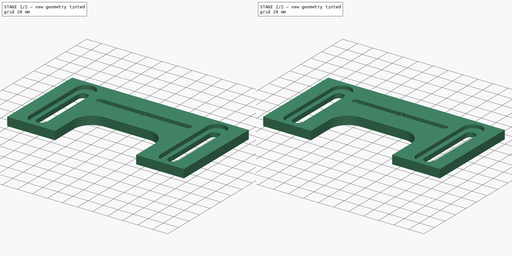
[diagram: build sequence overview — one tinted view per stage of 2, left to right]
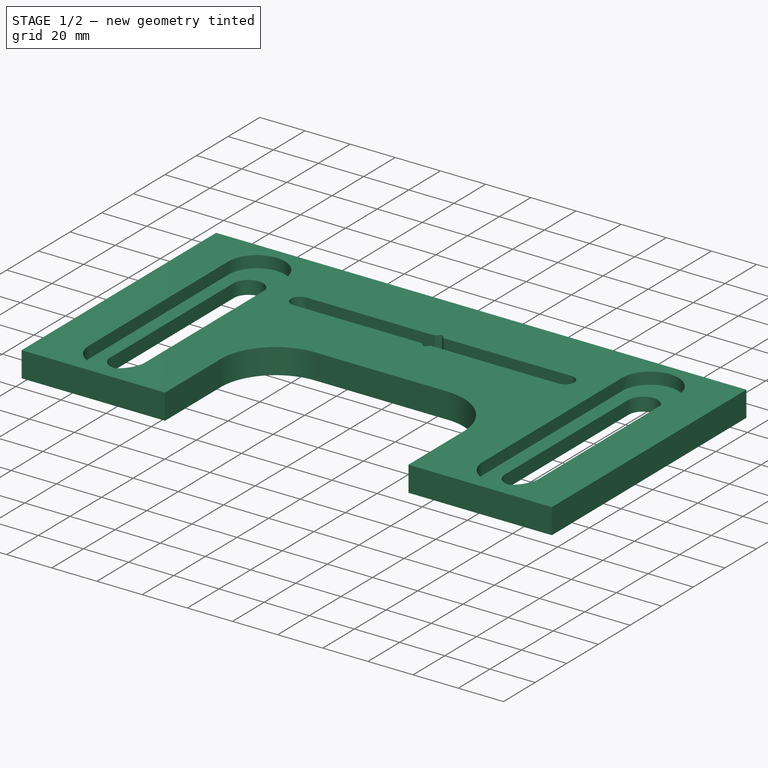
[diagram: stage 1 of 2 — iso view after this stage's code; geometry added in this stage tinted green]
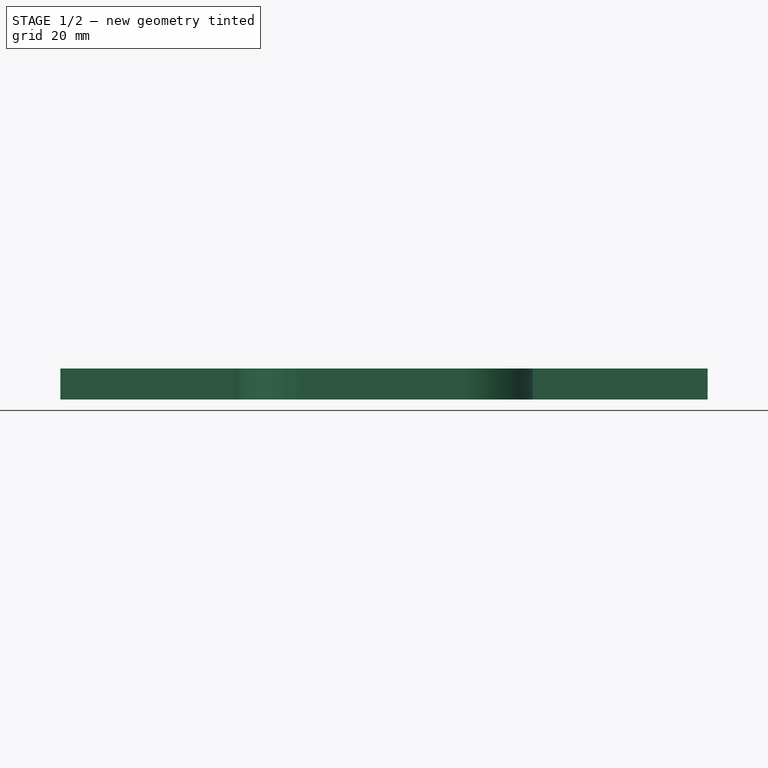
[diagram: stage 1 of 2 — front view after this stage's code; geometry added in this stage tinted green]
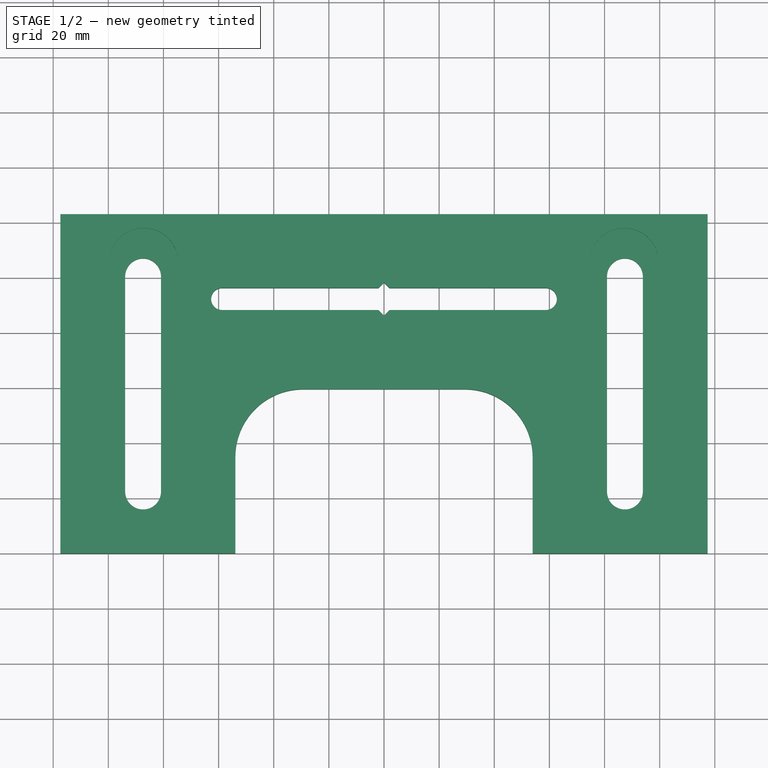
[diagram: stage 1 of 2 — top view after this stage's code; geometry added in this stage tinted green]
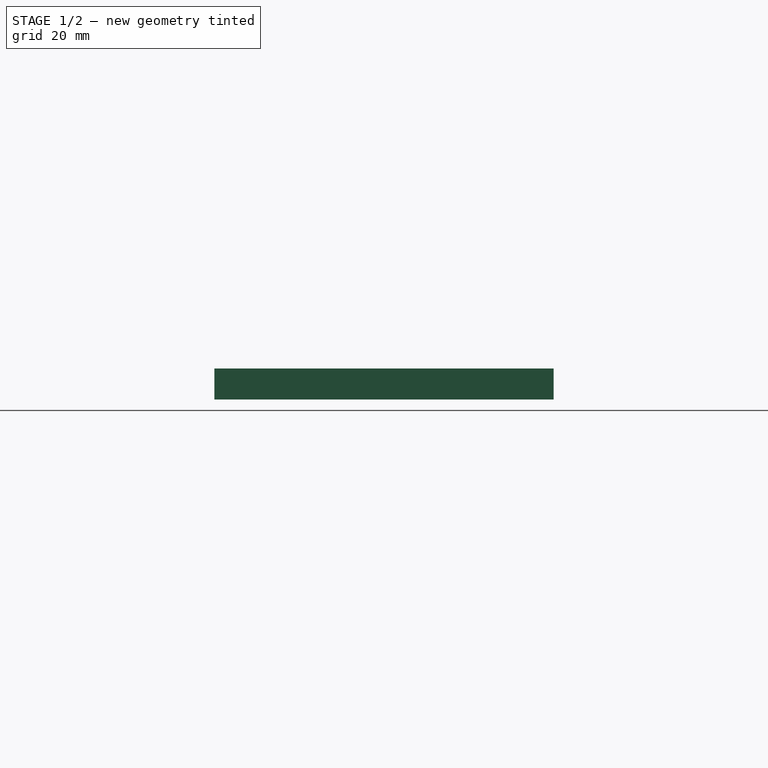
[diagram: stage 1 of 2 — right view after this stage's code; geometry added in this stage tinted green]
FCSTD DOCUMENT  (FreeCAD 2023.131R26244 +5365 (Git))
Label: Door Hinge Template
License: All rights reserved
LicenseURL: http://en.wikipedia.org/wiki/All_rights_reserved
objects: Sketcher::SketchObject×2, Spreadsheet::Sheet×1, PartDesign::Pad×1, PartDesign::Pocket×1, PartDesign::Fillet×1, PartDesign::Body×1
note: 14 computed .brp shape members not serialized (recipe doc carries the construction recipe); baked Part::Feature solids carry a one-line shape summary decoded from their .brp

FEATURE [Spreadsheet::Sheet] Spreadsheet  label="Parameters"
  PythonMode = false
  ShowCells = 0
  TreeRank = 1
  cells = A1=Hinge Width; B1(Hinge_Width)=88.75; A2=Hinge Depth; B2(Hinge_Depth)=50; A3=Hinge Corner Diameter; B3(Hinge_Corner_Diameter)=15; A5=Bushing Diameter; B5(Bushing_Diameter)=25.4; C5=3/8 inches; A6=Bushing Height; B6(Bushing_Height)=6; A7=Router Bit Diameter; B7(Router_Bit_Diameter)=6.35; C7=1/4 inches; A8=Router Bit Offset; B8(Delta)==(Bushing_Diameter - Router_Bit_Diameter) / 2; A10=Cutout Width; B10(Cutout_Width)==Hinge_Width + 2 * Delta; A11=Cutout Depth; B11(Cutout_Depth)==Hinge_Depth + Delta; A12=Cutout Corner Diameter; B12(Cutout_Corner_Diameter)==Hinge_Corner_Diameter + Delta; A14=Router Base Diameter; B14(Router_Base_Diameter)=127; A15=Door Thickness; B15(Door_Thickness)=35; A16=Screw Head + Washer Height; B16(Washer_Height)=5.25; A17=Washer Diameter; B17(Washer_Diameter)=12.5; A19=Plastic Thickness; B19(Thickness)=4; A20=Platform Width; B20(Width)==Cutout_Width + Router_Base_Diameter; A21=Platform Depth; B21(Depth)==Cutout_Depth + Router_Base_Diameter / 2; A23=Slot Width; B23(Slot_Width)=6.5; A24=Slot Length; B24(Slot_Length)==Depth - 8 * Thickness - 2 * Slot_Width; A25=Slot X Offset; B25(Slot_X_Offset)==Hinge_Width / 2 + (Width - Hinge_Width) / 4
FEATURE [Sketcher::SketchObject] Sketch
  ArcFitTolerance = 1e-06
  AttachmentSupport = -> [XY_Plane]
  ExternalBSplineMaxDegree = 5
  ExternalBSplineTolerance = 0.0001
  FullyConstrained = false
  InternalTolerance = 1e-06
  InvalidShape = false
  MakeInternals = false
  MapMode = 5
  Support = -> [XY_Plane]
  TreeRank = 12
  ValidateShape = true
  expr: Constraints[10] = <<Parameters>>.Width
  expr: Constraints[18] = <<Parameters>>.Cutout_Corner_Diameter
  expr: Constraints[20] = <<Parameters>>.Cutout_Depth
  expr: Constraints[21] = <<Parameters>>.Cutout_Width
  expr: Constraints[32] = <<Parameters>>.Slot_Width
  expr: Constraints[33] = <<Parameters>>.Slot_Length
  expr: Constraints[34] = <<Parameters>>.Slot_X_Offset
  expr: Constraints[43] = <<Parameters>>.Slot_X_Offset
  expr: Constraints[51] = <<Parameters>>.Depth / 2
  expr: Constraints[63] = <<Parameters>>.Depth / 4 * 3
  expr: Constraints[64] = <<Parameters>>.Width / 2
  expr: Constraints[69] = <<Parameters>>.Thickness
  expr: Constraints[9] = <<Parameters>>.Depth
  sketch-geometry (33):
    g0: LineSegment StartX=117.4 StartY=123.025 StartZ=0 EndX=117.4 EndY=0 EndZ=0
    g1: LineSegment StartX=117.4 StartY=0 StartZ=0 EndX=53.9 EndY=0 EndZ=0
    g2: LineSegment StartX=-117.4 StartY=0 StartZ=0 EndX=-117.4 EndY=123.025 EndZ=0
    g3: LineSegment StartX=-117.4 StartY=123.025 StartZ=0 EndX=117.4 EndY=123.025 EndZ=0
    g4: LineSegment StartX=53.9 StartY=0 StartZ=0 EndX=53.9 EndY=35 EndZ=0
    g5: LineSegment StartX=29.375 StartY=59.525 StartZ=0 EndX=-29.375 EndY=59.525 EndZ=0
    g6: LineSegment StartX=-53.9 StartY=35 StartZ=0 EndX=-53.9 EndY=0 EndZ=0
    g7: ArcOfCircle CenterX=-29.375 CenterY=35 CenterZ=0 NormalX=0 NormalY=0 NormalZ=1 AngleXU=0 Radius=24.525 StartAngle=1.5708 EndAngle=3.14159
    g8: ArcOfCircle CenterX=29.375 CenterY=35 CenterZ=0 NormalX=0 NormalY=0 NormalZ=1 AngleXU=0 Radius=24.525 StartAngle=0 EndAngle=1.5708
    g9: LineSegment StartX=-53.9 StartY=0 StartZ=0 EndX=-117.4 EndY=0 EndZ=0
    g10: ArcOfCircle CenterX=-87.3875 CenterY=100.525 CenterZ=0 NormalX=0 NormalY=0 NormalZ=1 AngleXU=0 Radius=6.5 StartAngle=2e-16 EndAngle=3.14159
    g11: ArcOfCircle CenterX=-87.3875 CenterY=22.5 CenterZ=0 NormalX=0 NormalY=0 NormalZ=1 AngleXU=0 Radius=6.5 StartAngle=3.14159 EndAngle=6.28319
    g12: LineSegment StartX=-93.8875 StartY=100.525 StartZ=0 EndX=-93.8875 EndY=22.5 EndZ=0
    g13: LineSegment StartX=-80.8875 StartY=22.5 StartZ=0 EndX=-80.8875 EndY=100.525 EndZ=0
    g14: ArcOfCircle CenterX=87.3875 CenterY=100.525 CenterZ=0 NormalX=0 NormalY=0 NormalZ=1 AngleXU=0 Radius=6.5 StartAngle=8e-16 EndAngle=3.14159
    g15: ArcOfCircle CenterX=87.3875 CenterY=22.5 CenterZ=0 NormalX=0 NormalY=0 NormalZ=1 AngleXU=0 Radius=6.5 StartAngle=3.14159 EndAngle=6.28319
    g16: LineSegment StartX=80.8875 StartY=100.525 StartZ=0 EndX=80.8875 EndY=22.5 EndZ=0
    g17: LineSegment StartX=93.8875 StartY=22.5 StartZ=0 EndX=93.8875 EndY=100.525 EndZ=0
    g18: LineSegment [constr] StartX=-87.3875 StartY=100.525 StartZ=0 EndX=87.3875 EndY=22.5 EndZ=0
    g19: LineSegment [constr] StartX=87.3875 StartY=100.525 StartZ=0 EndX=-87.3875 EndY=22.5 EndZ=0
    g20: GeomPoint [constr] X=-7.5e-15 Y=61.5125 Z=0
    g21: ArcOfCircle CenterX=-58.7 CenterY=92.2688 CenterZ=0 NormalX=0 NormalY=0 NormalZ=1 AngleXU=0 Radius=4 StartAngle=1.5708 EndAngle=4.71239
    g22: ArcOfCircle CenterX=58.7 CenterY=92.2688 CenterZ=0 NormalX=0 NormalY=0 NormalZ=1 AngleXU=0 Radius=4 StartAngle=4.71239 EndAngle=7.85398
    g23: LineSegment StartX=-58.7 StartY=88.2688 StartZ=0 EndX=-2 EndY=88.2688 EndZ=0
    g24: LineSegment StartX=58.7 StartY=96.2688 StartZ=0 EndX=2 EndY=96.2688 EndZ=0
    g25: LineSegment [constr] StartX=-58.7 StartY=92.2688 StartZ=0 EndX=58.7 EndY=92.2688 EndZ=0
    g26: GeomPoint [constr] X=0 Y=92.2688 Z=0
    g27: LineSegment StartX=-2 StartY=88.2688 StartZ=0 EndX=0 EndY=86.2688 EndZ=0
    g28: LineSegment StartX=0 StartY=86.2688 StartZ=0 EndX=2 EndY=88.2688 EndZ=0
    g29: LineSegment StartX=-2 StartY=96.2688 StartZ=0 EndX=-4e-16 EndY=98.2688 EndZ=0
    g30: LineSegment StartX=-4e-16 StartY=98.2688 StartZ=0 EndX=2 EndY=96.2688 EndZ=0
    g31: LineSegment StartX=-2 StartY=96.2688 StartZ=0 EndX=-58.7 EndY=96.2688 EndZ=0
    g32: LineSegment StartX=2 StartY=88.2688 StartZ=0 EndX=58.7 EndY=88.2688 EndZ=0
  constraints (83):
    c: Coincident(g0,g1)
    c: Coincident(g9,g2)
    c: Coincident(g2,g3)
    c: Coincident(g3,g0)
    c: Horizontal(g1)
    c: Horizontal(g3)
    c: Vertical(g0)
    c: Vertical(g2)
    c: PointOnObject(g9,g-1)
    c: DistanceY(g0,g0) = 123.025
    c: DistanceX(g3,g3) = 234.8
    c: Horizontal(g5)
    c: Vertical(g4)
    c: Vertical(g6)
    c: Tangent(g5,g7) = -1.5708
    c: Tangent(g6,g7) = -1.5708
    c: Tangent(g4,g8) = -1.5708
    c: Tangent(g5,g8) = -1.5708
    c: Radius(g7) = 24.525
    c: Symmetric(g6,g4,g-2)
    c: DistanceY(g-1,g5) = 59.525
    c: DistanceX(g6,g4) = 107.8
    c: Coincident(g9,g6)
    c: PointOnObject(g6,g-1)
    c: Coincident(g1,g4)
    c: Symmetric(g2,g0,g-2)
    c: Tangent(g10,g12) = -1.5708
    c: Tangent(g12,g11) = -1.5708
    c: Tangent(g11,g13) = -1.5708
    c: Tangent(g13,g10) = -1.5708
    c: Equal(g10,g11)
    c: Vertical(g13)
    c: Radius(g10) = 6.5
    c: DistanceY(g11,g10) = 78.025
    c: DistanceX(g11,g-1) = 80.8875
    c: Tangent(g14,g16) = -1.5708
    c: Tangent(g16,g15) = -1.5708
    c: Tangent(g15,g17) = -1.5708
    c: Tangent(g17,g14) = -1.5708
    c: Equal(g14,g15)
    c: Vertical(g16)
    c: Equal(g10,g14)
    c: Equal(g12,g17)
    c: DistanceX(g-1,g15) = 80.8875
    c: DistanceY(g10,g14) = 0
    c: Coincident(g18,g10)
    c: Coincident(g18,g15)
    c: Coincident(g19,g14)
    c: Coincident(g19,g11)
    c: PointOnObject(g20,g18)
    c: PointOnObject(g20,g19)
    c: DistanceY(g-1,g20) = 61.5125
    c: Tangent(g21,g23) = -1.5708
    c: Coincident(g32,g22) = -1.5708
    c: Tangent(g22,g24) = -1.5708
    c: Coincident(g31,g21) = -1.5708
    c: Equal(g21,g22)
    c: Radius(g22) = 4
    c: Symmetric(g21,g22,g-2)
    c: Coincident(g25,g21)
    c: Coincident(g25,g22)
    c: PointOnObject(g26,g25)
    c: PointOnObject(g26,g-2)
    c: DistanceY(g-1,g26) = 92.2688
    c: DistanceX(g21,g22) = 117.4
    c: PointOnObject(g27,g-2)
    c: Coincident(g28,g27)
    c: Angle(g23,g28) = 0.785398
    c: Angle(g27,g23) = 0.785398
    c: DistanceX(g27,g28) = 4
    c: PointOnObject(g29,g-2)
    c: Coincident(g30,g29)
    c: Equal(g27,g29)
    c: Equal(g29,g30)
    c: Angle(g30,g24) = 0.785398
    c: Coincident(g24,g30)
    c: Coincident(g31,g29)
    c: Coincident(g23,g27)
    c: Coincident(g32,g28)
    c: Horizontal(g31)
    c: Horizontal(g23)
    c: Horizontal(g32)
    c: Horizontal(g24)
FEATURE [PartDesign::Pad] Pad
  AddSubType = 0
  AlongSketchNormal = false
  AutoTaperInnerAngle = true
  CheckUpToFaceLimits = true
  ClaimChildren = false
  Direction = (0,0,1)
  Fit = 0
  FitJoin = 0
  InnerFit = 0
  InnerFitJoin = 0
  InvalidShape = false
  Length = 11.25
  Length2 = 100
  Linearize = true
  NewSolid = false
  Profile = -> Sketch
  Suppress = false
  TaperInnerAngle = 0
  TaperInnerAngleRev = 0
  TreeRank = 13
  Type = 0
  ValidateShape = true
  _ProfileBasedVersion = 1
  expr: Length = <<Parameters>>.Bushing_Height + <<Parameters>>.Washer_Height
FEATURE [Sketcher::SketchObject] Sketch001
  ArcFitTolerance = 1e-06
  AttachmentSupport = -> [Pad]
  ExternalBSplineMaxDegree = 5
  ExternalBSplineTolerance = 0.0001
  FullyConstrained = true
  InternalTolerance = 1e-06
  InvalidShape = false
  MakeInternals = false
  MapMode = 5
  Placement = pos=(0,0,11.25) rot=(0,0,1;0rad)
  Support = -> [Pad]
  TreeRank = 14
  ValidateShape = true
  expr: Constraints[14] = <<Parameters>>.Washer_Diameter
  expr: Constraints[16] = <<Parameters>>.Slot_X_Offset - <<Parameters>>.Washer_Diameter / 2
  expr: Constraints[17] = <<Parameters>>.Slot_X_Offset - <<Parameters>>.Washer_Diameter / 2
  expr: Constraints[18] = <<Parameters>>.Slot_Length + <<Parameters>>.Washer_Diameter * 0.8
  expr: Constraints[25] = <<Parameters>>.Depth / 2
  sketch-geometry (11):
    g0: ArcOfCircle CenterX=-87.1375 CenterY=105.525 CenterZ=0 NormalX=0 NormalY=0 NormalZ=1 AngleXU=0 Radius=12.5 StartAngle=-9.7709e-12 EndAngle=3.14159
    g1: ArcOfCircle CenterX=-87.1375 CenterY=17.5 CenterZ=0 NormalX=0 NormalY=0 NormalZ=1 AngleXU=0 Radius=12.5 StartAngle=3.14159 EndAngle=6.28319
    g2: LineSegment StartX=-99.6375 StartY=105.525 StartZ=0 EndX=-99.6375 EndY=17.5 EndZ=0
    g3: LineSegment StartX=-74.6375 StartY=17.5 StartZ=0 EndX=-74.6375 EndY=105.525 EndZ=0
    g4: ArcOfCircle CenterX=87.1375 CenterY=105.525 CenterZ=0 NormalX=0 NormalY=0 NormalZ=1 AngleXU=0 Radius=12.5 StartAngle=0 EndAngle=3.14159
    g5: ArcOfCircle CenterX=87.1375 CenterY=17.5 CenterZ=0 NormalX=0 NormalY=0 NormalZ=1 AngleXU=0 Radius=12.5 StartAngle=3.14159 EndAngle=6.28319
    g6: LineSegment StartX=74.6375 StartY=105.525 StartZ=0 EndX=74.6375 EndY=17.5 EndZ=0
    g7: LineSegment StartX=99.6375 StartY=17.5 StartZ=0 EndX=99.6375 EndY=105.525 EndZ=0
    g8: LineSegment [constr] StartX=-87.1375 StartY=105.525 StartZ=0 EndX=87.1375 EndY=17.5 EndZ=0
    g9: LineSegment [constr] StartX=87.1375 StartY=105.525 StartZ=0 EndX=-87.1375 EndY=17.5 EndZ=0
    g10: GeomPoint [constr] X=1.28373e-10 Y=61.5125 Z=0
  constraints (26):
    c: Tangent(g0,g2) = -1.5708
    c: Tangent(g2,g1) = -1.5708
    c: Tangent(g1,g3) = -1.5708
    c: Tangent(g3,g0) = -1.5708
    c: Equal(g0,g1)
    c: Tangent(g4,g6) = -1.5708
    c: Tangent(g6,g5) = -1.5708
    c: Tangent(g5,g7) = -1.5708
    c: Tangent(g7,g4) = -1.5708
    c: Equal(g4,g5)
    c: Vertical(g2)
    c: Vertical(g7)
    c: Equal(g0,g4)
    c: Equal(g3,g6)
    c: Radius(g0) = 12.5
    c: DistanceY(g0,g4) = 0
    c: DistanceX(g1,g-1) = 74.6375
    c: DistanceX(g-1,g5) = 74.6375
    c: DistanceY(g1,g0) = 88.025
    c: Coincident(g8,g0)
    c: Coincident(g8,g5)
    c: Coincident(g9,g4)
    c: Coincident(g9,g1)
    c: PointOnObject(g10,g8)
    c: PointOnObject(g10,g9)
    c: DistanceY(g-1,g10) = 61.5125
FEATURE [PartDesign::Pocket] Pocket
  AddSubType = 1
  AutoTaperInnerAngle = true
  BaseFeature = -> Pad
  CheckUpToFaceLimits = true
  ClaimChildren = false
  Fit = 0
  FitJoin = 0
  InnerFit = 0
  InnerFitJoin = 0
  InvalidShape = false
  Length = 5.25
  Length2 = 100
  Linearize = true
  NewSolid = false
  Profile = -> Sketch001
  Suppress = false
  TaperInnerAngle = 0
  TaperInnerAngleRev = 0
  TreeRank = 15
  Type = 0
  ValidateShape = true
  _ProfileBasedVersion = 1
  _Version = 1
  expr: Length = <<Parameters>>.Washer_Height
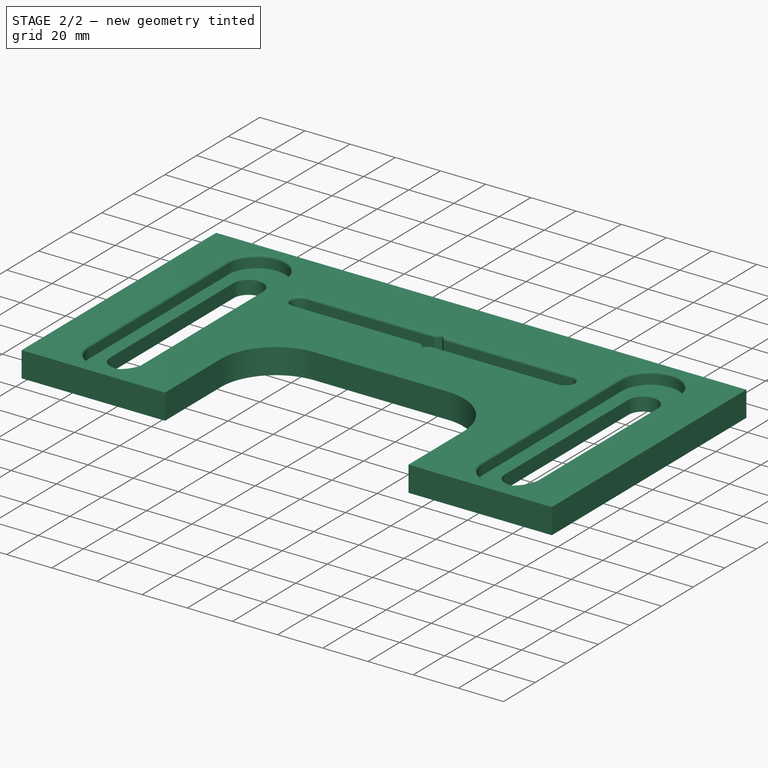
[diagram: stage 2 of 2 — iso view after this stage's code; geometry added in this stage tinted green]
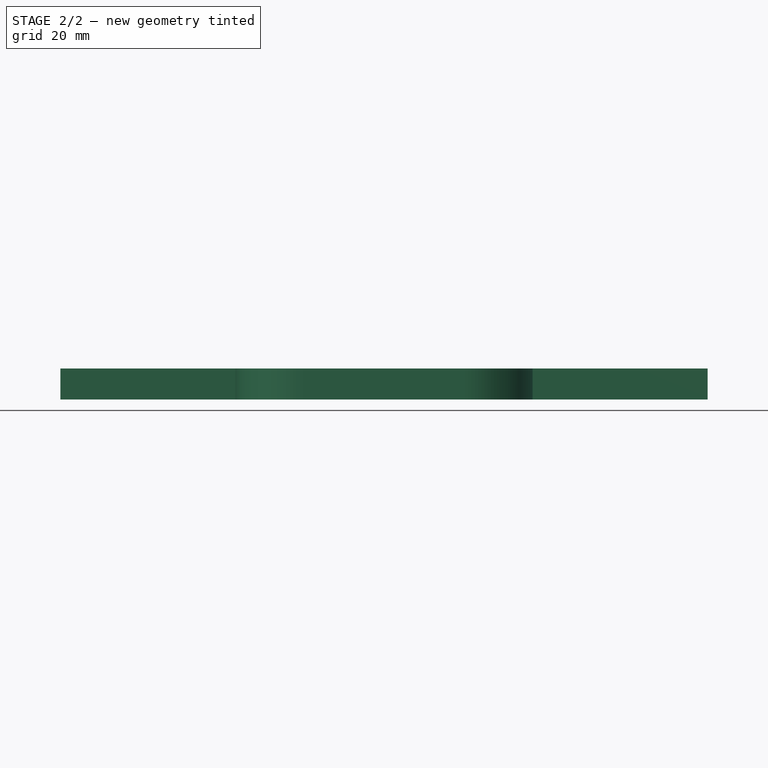
[diagram: stage 2 of 2 — front view after this stage's code; geometry added in this stage tinted green]
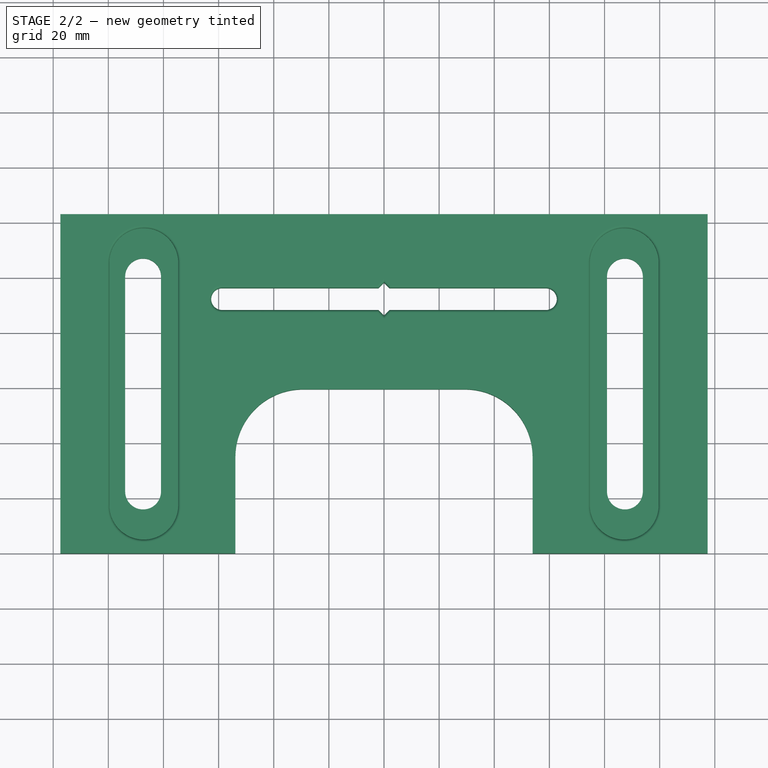
[diagram: stage 2 of 2 — top view after this stage's code; geometry added in this stage tinted green]
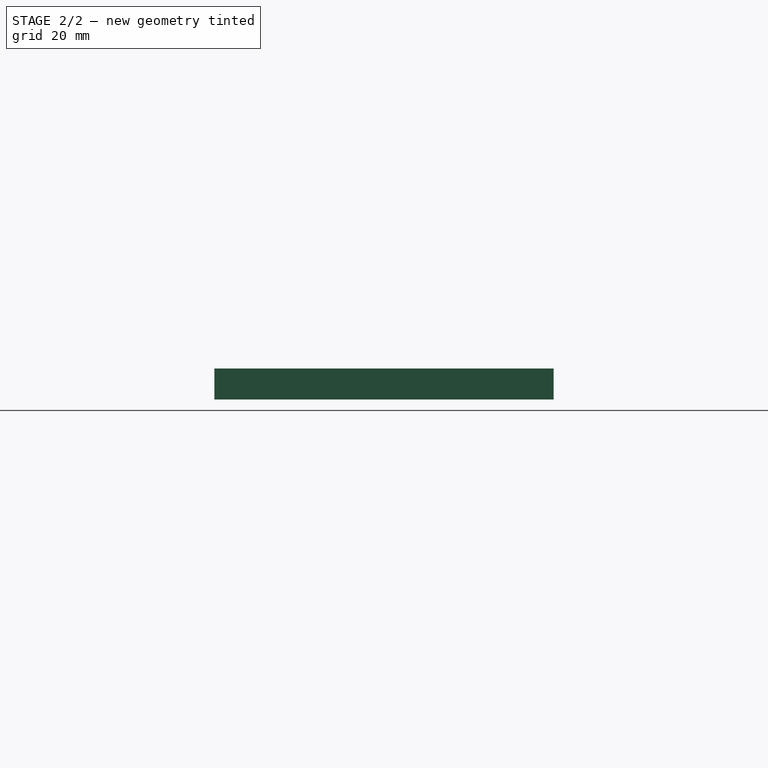
[diagram: stage 2 of 2 — right view after this stage's code; geometry added in this stage tinted green]
FEATURE [PartDesign::Fillet] Fillet
  AddSubType = 0
  Base = -> Pocket [Edge56,Edge58,Edge60,Edge59,Edge57,Edge54,Edge52,Edge51,Edge55,Edge53,Edge46,Edge43,Edge44,Edge47,Edge48,Edge50,Edge49,Edge45]
  BaseFeature = -> Pocket
  InvalidShape = false
  NewSolid = false
  Radius = 1
  SupportTransform = false
  Suppress = false
  TreeRank = 16
  ValidateShape = true
FEATURE [PartDesign::Body] Body
  AutoGroupSolids = false
  ClaimAllChildren = false
  ExportMode = 0
  Group = -> [Sketch,Pad,Sketch001,Pocket,Fillet]
  InvalidShape = false
  Origin = -> Origin
  Tip = -> Fillet
  TreeRank = 11
  ValidateShape = true
  _ExportChildren = -> [Pad,Pocket,Fillet]
  _GroupVersion = 1
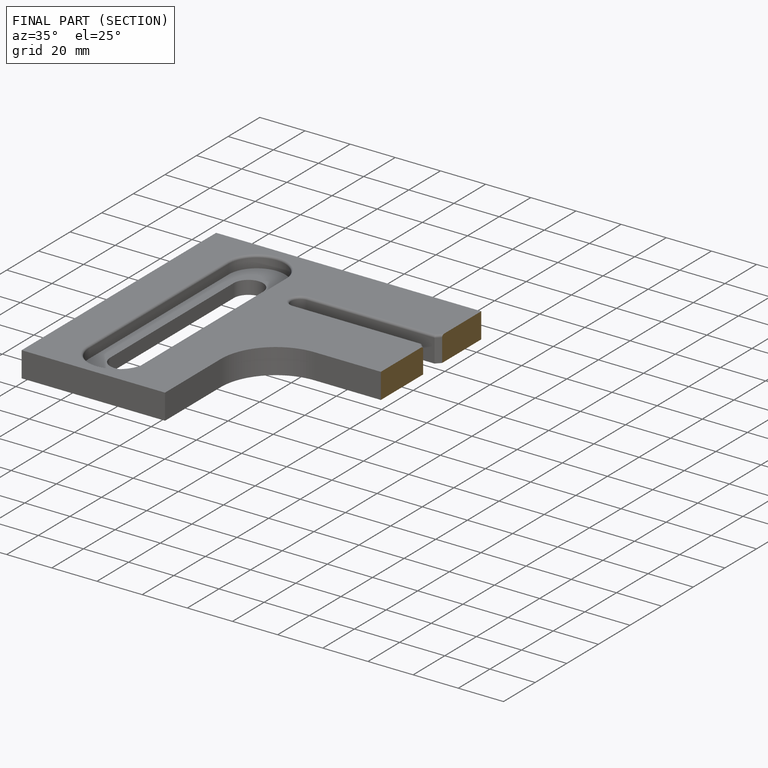
[diagram: finished part — half-section view (interior)]
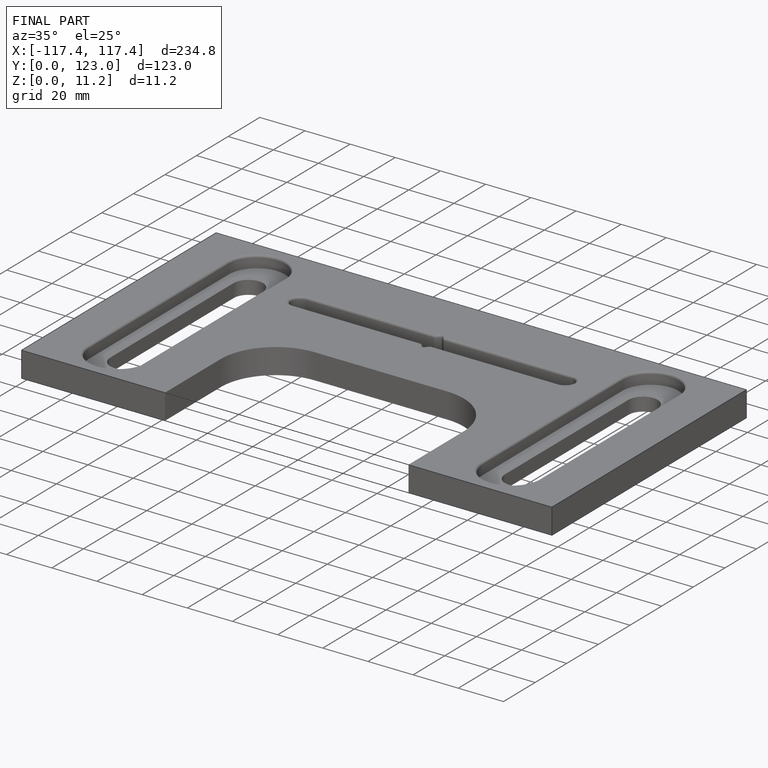
[diagram: finished part — iso view with bounding-box wireframe]
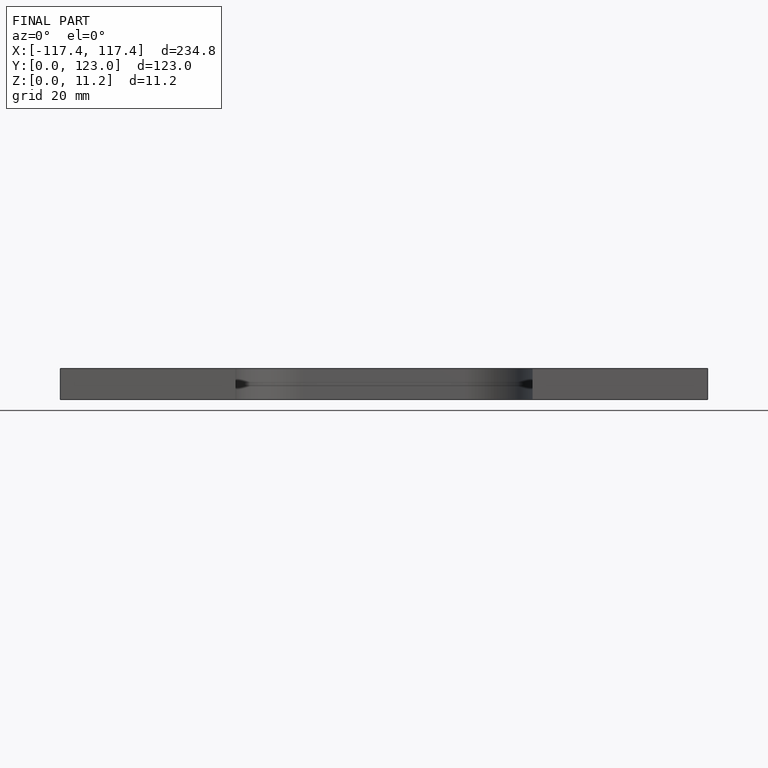
[diagram: finished part — front view with bounding-box wireframe]
